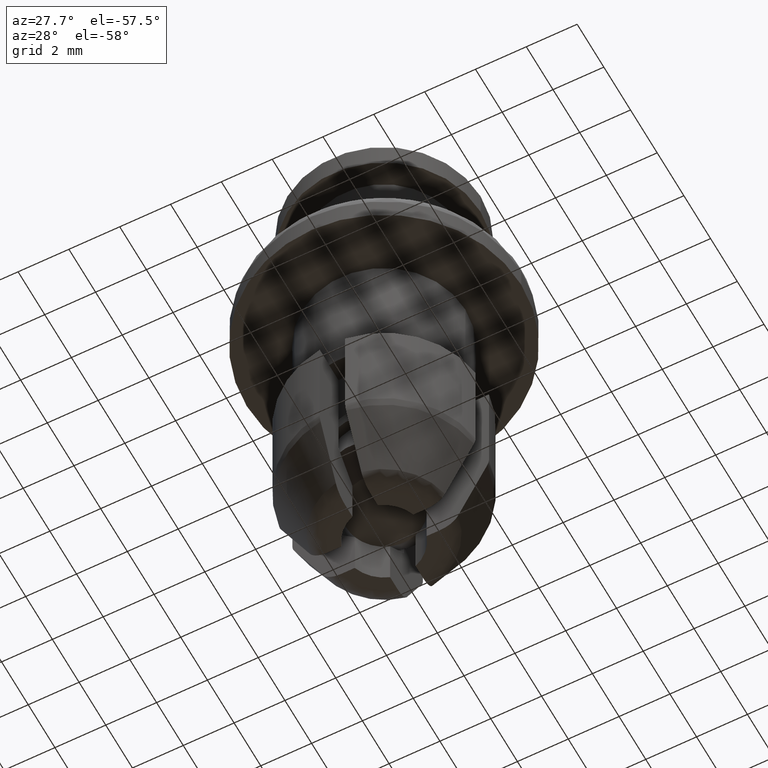
[diagram: clean part render]
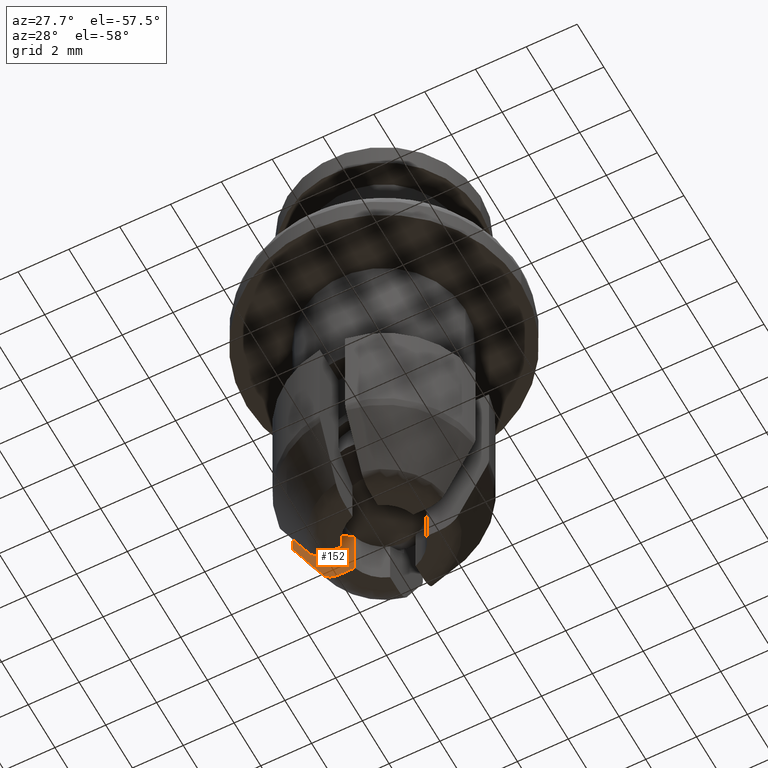
[diagram: same view with one face highlighted and labeled with its STEP entity id]
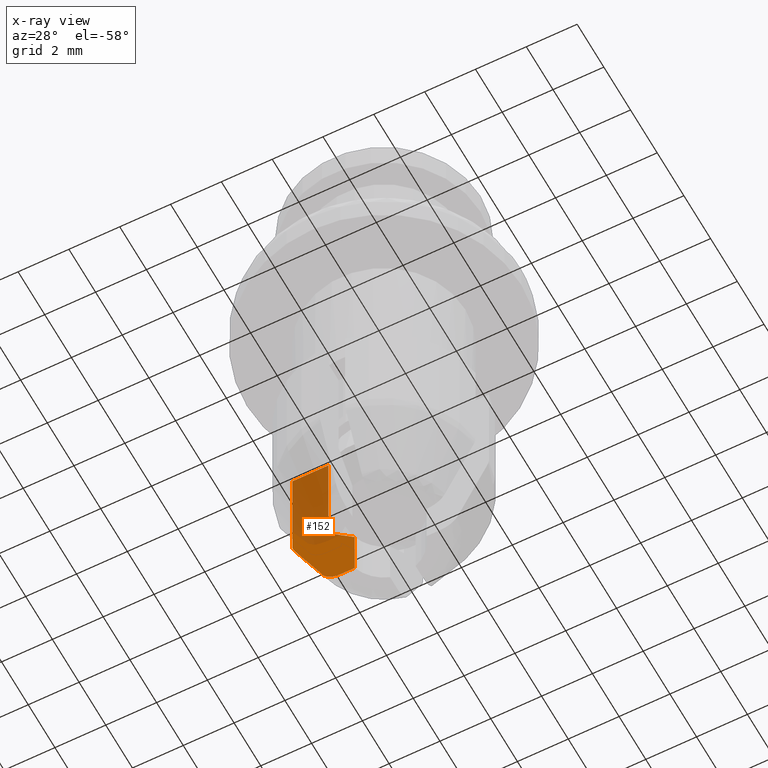
[diagram: x-ray of the same camera — body ghosted, the highlighted face saturated]
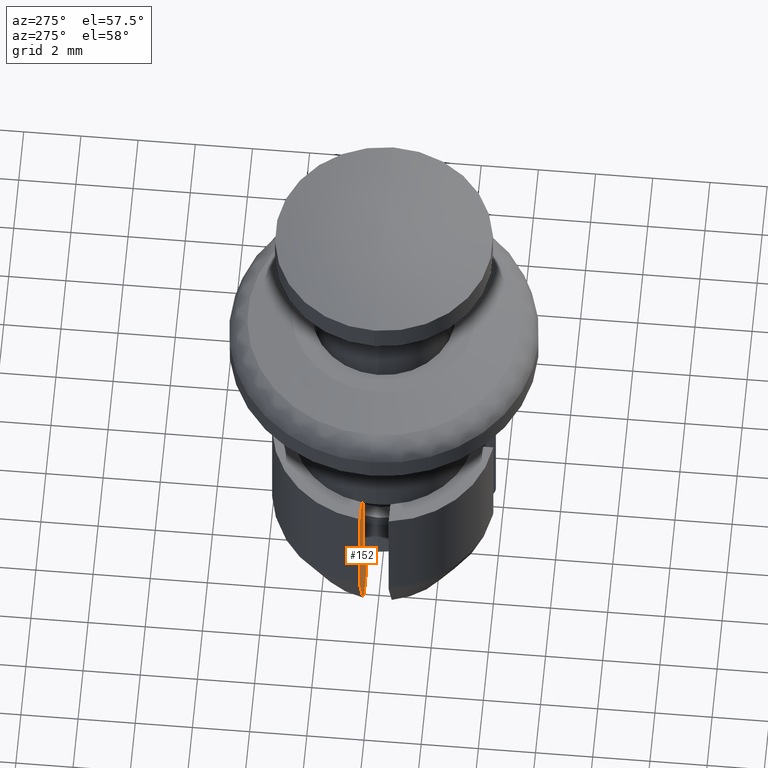
[diagram: same view with one face highlighted and labeled with its STEP entity id]
A machine part, auxiliary view. The second image highlights one B-rep face of the part: STEP entity #152.
The next image is the same camera in x-ray: the body ghosted, the highlighted face saturated — about 58% of this face is hidden behind the body in this view.
A second angle (auxiliary view) of the same face is appended — the face is thin or edge-on in the first view.
In plain terms, the highlighted planar face has unit normal (0, -1, 0).
Its self-contained STEP definition (entity closure, byte-faithful):
#152=ADVANCED_FACE('',(#594),#593,.T.);
#593=PLANE('',#1270);
#594=FACE_OUTER_BOUND('',#1271,.T.);
#1267=CARTESIAN_POINT('',(-4.11319468824E+00,5.00000000000E-01,-6.55997000000E+00));
#1268=DIRECTION('',(0.00000000000E+00,-1.00000000000E+00,0.00000000000E+00));
#1269=DIRECTION('',(0.00000000000E+00,0.00000000000E+00,-1.00000000000E+00));
#1270=AXIS2_PLACEMENT_3D('',#1267,#1268,#1269);
#1271=EDGE_LOOP('',(#1758,#1759,#1760,#1761,#1762,#1763,#1764,#1765,#1766,#1767));
#1758=ORIENTED_EDGE('',*,*,#2006,.T.);
#1759=ORIENTED_EDGE('',*,*,#2016,.T.);
#1760=ORIENTED_EDGE('',*,*,#2038,.T.);
#1761=ORIENTED_EDGE('',*,*,#2031,.T.);
#1762=ORIENTED_EDGE('',*,*,#1979,.T.);
#1763=ORIENTED_EDGE('',*,*,#2075,.F.);
#1764=ORIENTED_EDGE('',*,*,#2076,.F.);
#1765=ORIENTED_EDGE('',*,*,#2077,.T.);
#1766=ORIENTED_EDGE('',*,*,#2074,.F.);
#1767=ORIENTED_EDGE('',*,*,#1993,.F.);
#1979=EDGE_CURVE('',#2366,#2367,#2368,.T.);
#1993=EDGE_CURVE('',#2462,#2463,#2464,.T.);
#2006=EDGE_CURVE('',#2462,#2552,#2553,.T.);
#2016=EDGE_CURVE('',#2552,#2618,#2619,.T.);
#2031=EDGE_CURVE('',#2718,#2366,#2719,.T.);
#2038=EDGE_CURVE('',#2618,#2718,#2762,.T.);
#2074=EDGE_CURVE('',#2463,#2971,#2998,.T.);
#2075=EDGE_CURVE('',#3004,#2367,#3005,.T.);
#2076=EDGE_CURVE('',#3011,#3004,#3012,.T.);
#2077=EDGE_CURVE('',#3011,#2971,#3018,.T.);
#2366=VERTEX_POINT('',#3585);
#2367=VERTEX_POINT('',#3586);
#2368=LINE('',#3587,#3588);
#2462=VERTEX_POINT('',#3647);
#2463=VERTEX_POINT('',#3648);
#2464=LINE('',#3649,#3650);
#2552=VERTEX_POINT('',#3705);
#2553=LINE('',#3706,#3707);
#2618=VERTEX_POINT('',#3745);
#2619=(BOUNDED_CURVE() B_SPLINE_CURVE(3,(#3746,#3747,#3748,#3749,#3750,#3751),.UNSPECIFIED.,.F.,.F.) B_SPLINE_CURVE_WITH_KNOTS((4,2,4),(4.51469723468E-03,4.67711672092E-03,4.83953620717E-03),.UNSPECIFIED.) CURVE() GEOMETRIC_REPRESENTATION_ITEM() RATIONAL_B_SPLINE_CURVE((1.00000000000E+00,1.00000000000E+00,1.00000000000E+00,1.00000000000E+00,1.00000000000E+00,1.00000000000E+00)) REPRESENTATION_ITEM('') );
#2718=VERTEX_POINT('',#3835);
#2719=(BOUNDED_CURVE() B_SPLINE_CURVE(3,(#3836,#3837,#3838,#3839,#3840,#3841),.UNSPECIFIED.,.F.,.F.) B_SPLINE_CURVE_WITH_KNOTS((4,2,4),(4.44792719944E-03,4.88227830136E-03,5.31662940329E-03),.UNSPECIFIED.) CURVE() GEOMETRIC_REPRESENTATION_ITEM() RATIONAL_B_SPLINE_CURVE((1.00000000000E+00,1.00000000000E+00,1.00000000000E+00,1.00000000000E+00,1.00000000000E+00,1.00000000000E+00)) REPRESENTATION_ITEM('') );
#2762=(BOUNDED_CURVE() B_SPLINE_CURVE(3,(#3869,#3870,#3871,#3872),.UNSPECIFIED.,.F.,.F.) B_SPLINE_CURVE_WITH_KNOTS((4,4),(2.52008606432E-03,5.18304188980E-03),.UNSPECIFIED.) CURVE() GEOMETRIC_REPRESENTATION_ITEM() RATIONAL_B_SPLINE_CURVE((1.00000000000E+00,1.00000000000E+00,1.00000000000E+00,1.00000000000E+00)) REPRESENTATION_ITEM('') );
#2971=VERTEX_POINT('',#4001);
#2998=LINE('',#4020,#4021);
#3004=VERTEX_POINT('',#4023);
#3005=LINE('',#4024,#4025);
#3011=VERTEX_POINT('',#4027);
#3012=(BOUNDED_CURVE() B_SPLINE_CURVE(3,(#4028,#4029,#4030,#4031),.UNSPECIFIED.,.F.,.F.) B_SPLINE_CURVE_WITH_KNOTS((4,4),(1.90996474572E-03,3.34929165142E-03),.UNSPECIFIED.) CURVE() GEOMETRIC_REPRESENTATION_ITEM() RATIONAL_B_SPLINE_CURVE((1.00000000000E+00,1.00000000000E+00,1.00000000000E+00,1.00000000000E+00)) REPRESENTATION_ITEM('') );
#3018=LINE('',#4032,#4033);
#3585=CARTESIAN_POINT('',(-1.95961775865E+00,5.00000000000E-01,-1.47003000000E+01));
#3586=CARTESIAN_POINT('',(-1.41421356237E+00,5.00000000000E-01,-1.47003000000E+01));
#3587=CARTESIAN_POINT('',(-1.95961775865E+00,5.00000000000E-01,-1.47003000000E+01));
#3588=VECTOR('',#3589,5.45404196273E-01);
#3589=DIRECTION('',(1.00000000000E+00,0.00000000000E+00,0.00000000000E+00));
#3647=CARTESIAN_POINT('',(-3.86781592116E+00,5.00000000000E-01,-7.30000000000E+00));
#3648=CARTESIAN_POINT('',(-3.16069612586E+00,5.00000000000E-01,-7.30000000000E+00));
#3649=CARTESIAN_POINT('',(-3.86781592116E+00,5.00000000000E-01,-7.30000000000E+00));
#3650=VECTOR('',#3651,7.07119795307E-01);
#3651=DIRECTION('',(1.00000000000E+00,0.00000000000E+00,0.00000000000E+00));
#3705=CARTESIAN_POINT('',(-3.86781592116E+00,5.00000000000E-01,-1.15339000000E+01));
#3706=CARTESIAN_POINT('',(-3.86781592116E+00,5.00000000000E-01,-7.30000000000E+00));
#3707=VECTOR('',#3708,4.23390000000E+00);
#3708=DIRECTION('',(0.00000000000E+00,0.00000000000E+00,-1.00000000000E+00));
#3745=CARTESIAN_POINT('',(-3.79692007949E+00,5.00000000000E-01,-1.18510000000E+01));
#3746=CARTESIAN_POINT('',(-3.86781592116E+00,5.00000000000E-01,-1.15339000000E+01));
#3747=CARTESIAN_POINT('',(-3.86783276770E+00,5.00000000000E-01,-1.15883283736E+01));
#3748=CARTESIAN_POINT('',(-3.86178910772E+00,5.00000000000E-01,-1.16432694308E+01));
#3749=CARTESIAN_POINT('',(-3.83787064829E+00,5.00000000000E-01,-1.17500233380E+01));
#3750=CARTESIAN_POINT('',(-3.81997784962E+00,5.00000000000E-01,-1.18020154353E+01));
#3751=CARTESIAN_POINT('',(-3.79692007949E+00,5.00000000000E-01,-1.18510000000E+01));
#3835=CARTESIAN_POINT('',(-2.65942644146E+00,5.00000000000E-01,-1.42587841873E+01));
#3836=CARTESIAN_POINT('',(-2.65942644146E+00,5.00000000000E-01,-1.42587841873E+01));
#3837=CARTESIAN_POINT('',(-2.59875993854E+00,5.00000000000E-01,-1.43909101642E+01));
#3838=CARTESIAN_POINT('',(-2.49690446029E+00,5.00000000000E-01,-1.45055603408E+01));
#3839=CARTESIAN_POINT('',(-2.25128194764E+00,5.00000000000E-01,-1.46591074517E+01));
#3840=CARTESIAN_POINT('',(-2.10574025357E+00,5.00000000000E-01,-1.47003000000E+01));
#3841=CARTESIAN_POINT('',(-1.95961775865E+00,5.00000000000E-01,-1.47003000000E+01));
#3869=CARTESIAN_POINT('',(-3.79692007949E+00,5.00000000000E-01,-1.18510000000E+01));
#3870=CARTESIAN_POINT('',(-3.41887715422E+00,5.00000000000E-01,-1.26541248479E+01));
#3871=CARTESIAN_POINT('',(-3.04018614231E+00,5.00000000000E-01,-1.34569527809E+01));
#3872=CARTESIAN_POINT('',(-2.65942644146E+00,5.00000000000E-01,-1.42587841873E+01));
#4001=CARTESIAN_POINT('',(-2.44948974278E+00,5.00000000000E-01,-7.30000000000E+00));
#4020=CARTESIAN_POINT('',(-3.16069612586E+00,5.00000000000E-01,-7.30000000000E+00));
#4021=VECTOR('',#4022,7.11206383073E-01);
#4022=DIRECTION('',(1.00000000000E+00,0.00000000000E+00,0.00000000000E+00));
#4023=CARTESIAN_POINT('',(-1.41421356237E+00,5.00000000000E-01,-1.27003633768E+01));
#4024=CARTESIAN_POINT('',(-1.41421356237E+00,5.00000000000E-01,-1.27003633768E+01));
#4025=VECTOR('',#4026,1.99993662322E+00);
#4026=DIRECTION('',(0.00000000000E+00,0.00000000000E+00,-1.00000000000E+00));
#4027=CARTESIAN_POINT('',(-2.44948974278E+00,5.00000000000E-01,-1.17003633768E+01));
#4028=CARTESIAN_POINT('',(-2.44948974278E+00,5.00000000000E-01,-1.17003633768E+01));
#4029=CARTESIAN_POINT('',(-2.10675330461E+00,5.00000000000E-01,-1.20361751327E+01));
#4030=CARTESIAN_POINT('',(-1.76330444916E+00,5.00000000000E-01,-1.23712373324E+01));
#4031=CARTESIAN_POINT('',(-1.41421356237E+00,5.00000000000E-01,-1.27003633768E+01));
#4032=CARTESIAN_POINT('',(-2.44948974278E+00,5.00000000000E-01,-1.17003633768E+01));
#4033=VECTOR('',#4034,4.40036337678E+00);
#4034=DIRECTION('',(0.00000000000E+00,0.00000000000E+00,1.00000000000E+00));